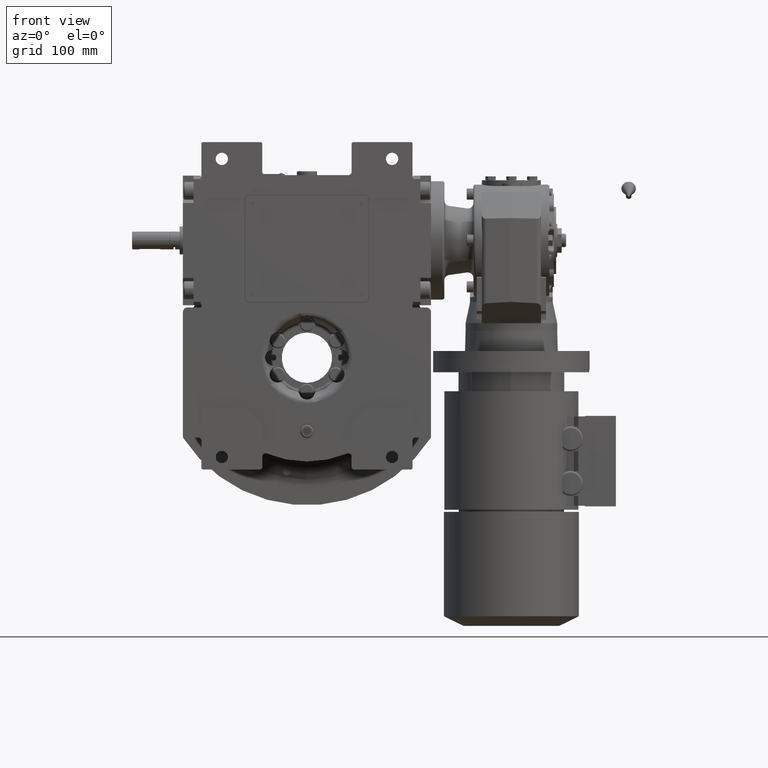
[diagram: clean part render]
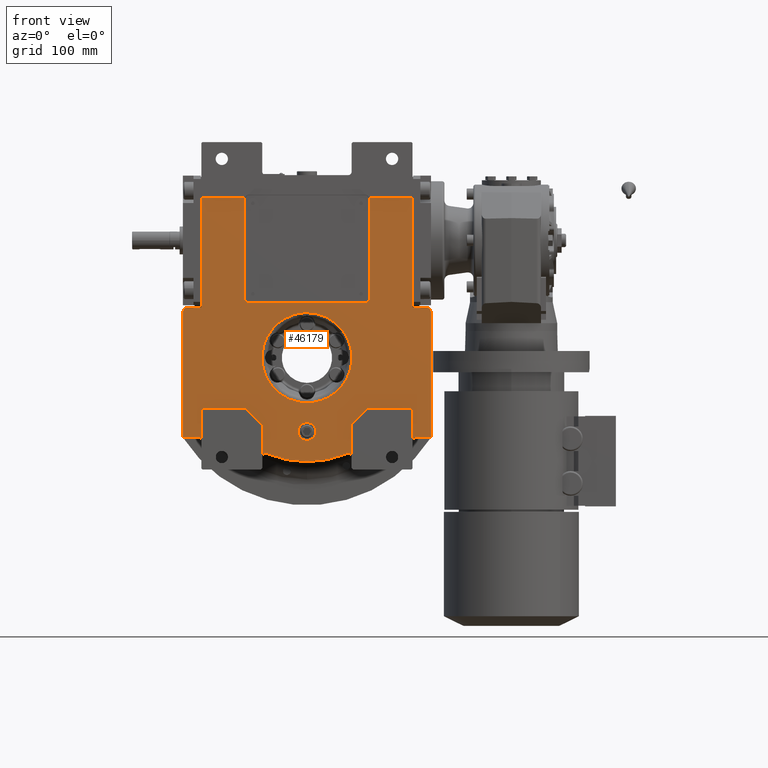
[diagram: same view with one face highlighted and labeled with its STEP entity id]
A machine part, front view. The second image highlights one B-rep face of the part: STEP entity #46179.
In plain terms, the highlighted planar face has unit normal (0, 1, 0).
Its self-contained STEP definition (entity closure, byte-faithful):
#464 = EDGE_CURVE ( 'NONE', #56667, #6692, #89729, .T. ) ;
#507 = CARTESIAN_POINT ( 'NONE',  ( 1.264666971694413862E-10, -53.50000000000000000, -40.30959420574829721 ) ) ;
#1080 = VERTEX_POINT ( 'NONE', #22429 ) ;
#1686 = ORIENTED_EDGE ( 'NONE', *, *, #12501, .T. ) ;
#1774 = CARTESIAN_POINT ( 'NONE',  ( 94.50000000000000000, -53.50000000000000000, -45.00000000000000000 ) ) ;
#2152 = DIRECTION ( 'NONE',  ( 0.000000000000000000, 1.000000000000000000, 0.000000000000000000 ) ) ;
#2241 = ORIENTED_EDGE ( 'NONE', *, *, #4283, .T. ) ;
#2763 = CARTESIAN_POINT ( 'NONE',  ( -107.0000000000000000, -53.50000000000000000, 41.00000000000000000 ) ) ;
#3138 = ORIENTED_EDGE ( 'NONE', *, *, #18342, .T. ) ;
#3786 = VECTOR ( 'NONE', #45458, 1000.000000000000000 ) ;
#4094 = EDGE_CURVE ( 'NONE', #17709, #36132, #56179, .T. ) ;
#4283 = EDGE_CURVE ( 'NONE', #48191, #56667, #73804, .T. ) ;
#4384 = VECTOR ( 'NONE', #84072, 1000.000000000000000 ) ;
#4463 = CIRCLE ( 'NONE', #62416, 92.99999999999995737 ) ;
#4571 = ORIENTED_EDGE ( 'NONE', *, *, #82298, .F. ) ;
#5327 = DIRECTION ( 'NONE',  ( 0.000000000000000000, -1.000000000000000000, 0.000000000000000000 ) ) ;
#5515 = VERTEX_POINT ( 'NONE', #1774 ) ;
#5816 = CARTESIAN_POINT ( 'NONE',  ( -111.0000000000000000, -53.50000000000000000, 41.00000000000000000 ) ) ;
#5862 = CARTESIAN_POINT ( 'NONE',  ( 51.99999999999940314, -53.50000000000000000, 142.0000000000000000 ) ) ;
#6116 = DIRECTION ( 'NONE',  ( 0.000000000000000000, -1.000000000000000000, 0.000000000000000000 ) ) ;
#6168 = EDGE_CURVE ( 'NONE', #5515, #84944, #99600, .T. ) ;
#6232 = DIRECTION ( 'NONE',  ( -0.000000000000000000, 1.000000000000000000, 0.000000000000000000 ) ) ;
#6692 = VERTEX_POINT ( 'NONE', #31850 ) ;
#6796 = CARTESIAN_POINT ( 'NONE',  ( 1.264666971694413862E-10, -53.50000000000000000, -40.30959420574829721 ) ) ;
#7255 = VECTOR ( 'NONE', #27142, 1000.000000000000000 ) ;
#7738 = ORIENTED_EDGE ( 'NONE', *, *, #32751, .F. ) ;
#8518 = DIRECTION ( 'NONE',  ( 1.000000000000000000, 0.000000000000000000, 0.000000000000000000 ) ) ;
#8534 = VERTEX_POINT ( 'NONE', #84133 ) ;
#8709 = ORIENTED_EDGE ( 'NONE', *, *, #47155, .F. ) ;
#9103 = EDGE_LOOP ( 'NONE', ( #80040, #43765, #40838, #64597, #23019, #65060, #71060, #45756, #1686, #83578, #3138, #59131, #59509, #7738, #4571, #25181, #87845, #47473, #16986, #8709, #16592, #81772, #17246, #2241, #20275, #91574, #34275, #102456, #78625, #41333, #27312, #46899 ) ) ;
#10734 = LINE ( 'NONE', #71959, #30532 ) ;
#10913 = VERTEX_POINT ( 'NONE', #97856 ) ;
#11661 = CARTESIAN_POINT ( 'NONE',  ( 94.50000000000000000, -53.50000000000000000, -74.43528539874399996 ) ) ;
#11984 = CARTESIAN_POINT ( 'NONE',  ( 0.000000000000000000, -53.50000000000000000, 0.000000000000000000 ) ) ;
#12132 = CARTESIAN_POINT ( 'NONE',  ( 97.50000000000000000, -53.50000000000000000, -74.43528539874399996 ) ) ;
#12406 = DIRECTION ( 'NONE',  ( -0.7071067811865474617, 0.000000000000000000, 0.7071067811865474617 ) ) ;
#12501 = EDGE_CURVE ( 'NONE', #8534, #67399, #52004, .T. ) ;
#13079 = AXIS2_PLACEMENT_3D ( 'NONE', #5862, #37495, #46282 ) ;
#13520 = CARTESIAN_POINT ( 'NONE',  ( -8.000000000000000000, -53.50000000000000000, -66.00000000000000000 ) ) ;
#14089 = LINE ( 'NONE', #77412, #21429 ) ;
#14228 = EDGE_CURVE ( 'NONE', #30820, #56730, #17584, .T. ) ;
#14391 = DIRECTION ( 'NONE',  ( -0.9682458365518610277, 0.000000000000000000, 0.2499999999999737432 ) ) ;
#15644 = DIRECTION ( 'NONE',  ( -1.000000000000000000, 0.000000000000000000, 0.000000000000000000 ) ) ;
#15866 = CARTESIAN_POINT ( 'NONE',  ( 94.50000000000000000, -53.50000000000000000, 45.00000000000000000 ) ) ;
#16068 = CARTESIAN_POINT ( 'NONE',  ( 80.61913312099713380, -53.49999999999999289, 40.30952624498025472 ) ) ;
#16592 = ORIENTED_EDGE ( 'NONE', *, *, #6168, .F. ) ;
#16986 = ORIENTED_EDGE ( 'NONE', *, *, #90536, .F. ) ;
#17108 = DIRECTION ( 'NONE',  ( 0.000000000000000000, -1.000000000000000000, 0.000000000000000000 ) ) ;
#17246 = ORIENTED_EDGE ( 'NONE', *, *, #59849, .T. ) ;
#17584 = CIRCLE ( 'NONE', #102149, 3.999999999999996447 ) ;
#17709 = VERTEX_POINT ( 'NONE', #76448 ) ;
#18193 = CARTESIAN_POINT ( 'NONE',  ( -40.00000000000000000, -53.50000000000000000, -60.00000000000000000 ) ) ;
#18342 = EDGE_CURVE ( 'NONE', #25554, #89978, #53421, .T. ) ;
#19723 = VERTEX_POINT ( 'NONE', #89640 ) ;
#19734 = FACE_OUTER_BOUND ( 'NONE', #9103, .T. ) ;
#19735 = VECTOR ( 'NONE', #33800, 1000.000000000000000 ) ;
#20047 = CARTESIAN_POINT ( 'NONE',  ( 55.00000000000000000, -53.50000000000000000, -45.00000000000000000 ) ) ;
#20172 = LINE ( 'NONE', #83498, #51760 ) ;
#20275 = ORIENTED_EDGE ( 'NONE', *, *, #464, .T. ) ;
#20347 = VERTEX_POINT ( 'NONE', #11661 ) ;
#20991 = CARTESIAN_POINT ( 'NONE',  ( -80.61913312099703433, -53.49999999999999289, -40.30952624498007708 ) ) ;
#21429 = VECTOR ( 'NONE', #31169, 1000.000000000000000 ) ;
#21814 = CARTESIAN_POINT ( 'NONE',  ( -40.00000000000000000, -53.50000000000000000, -88.58329413608420566 ) ) ;
#21897 = CARTESIAN_POINT ( 'NONE',  ( -8.881784197001250351E-16, -53.50000000000000000, -66.00000000000000000 ) ) ;
#21916 = DIRECTION ( 'NONE',  ( 0.000000000000000000, 1.000000000000000000, 0.000000000000000000 ) ) ;
#22091 = LINE ( 'NONE', #101017, #27993 ) ;
#22429 = CARTESIAN_POINT ( 'NONE',  ( 107.0000000000000000, -53.50000000000000000, 45.00000000000000000 ) ) ;
#22625 = CARTESIAN_POINT ( 'NONE',  ( -52.00000000000000000, -53.50000000000000000, 49.00000000000000000 ) ) ;
#23019 = ORIENTED_EDGE ( 'NONE', *, *, #4094, .F. ) ;
#23852 = CARTESIAN_POINT ( 'NONE',  ( -1.264761546777279996E-10, -53.50000000000000000, 40.30959420574835406 ) ) ;
#24392 = CIRCLE ( 'NONE', #82432, 3.999999999999996447 ) ;
#24603 = CIRCLE ( 'NONE', #13079, 4.000000000000572875 ) ;
#24646 = ORIENTED_EDGE ( 'NONE', *, *, #53466, .T. ) ;
#25085 = LINE ( 'NONE', #56739, #94027 ) ;
#25181 = ORIENTED_EDGE ( 'NONE', *, *, #27192, .T. ) ;
#25343 = VERTEX_POINT ( 'NONE', #42305 ) ;
#25554 = VERTEX_POINT ( 'NONE', #101961 ) ;
#25806 = CIRCLE ( 'NONE', #100455, 8.000000000000000000 ) ;
#25988 = CARTESIAN_POINT ( 'NONE',  ( 40.00000000000000000, -53.50000000000000000, -60.00000000000000000 ) ) ;
#26635 = EDGE_CURVE ( 'NONE', #44273, #32490, #4463, .T. ) ;
#27018 = CARTESIAN_POINT ( 'NONE',  ( 37.00000000000000000, -53.50000000000000000, -88.58329413608420566 ) ) ;
#27142 = DIRECTION ( 'NONE',  ( 1.000000000000000000, 0.000000000000000000, 0.000000000000000000 ) ) ;
#27192 = EDGE_CURVE ( 'NONE', #99356, #44273, #42559, .T. ) ;
#27265 = LINE ( 'NONE', #49582, #95586 ) ;
#27312 = ORIENTED_EDGE ( 'NONE', *, *, #94726, .F. ) ;
#27383 = DIRECTION ( 'NONE',  ( 0.000000000000000000, -1.000000000000000000, 0.000000000000000000 ) ) ;
#27727 = VERTEX_POINT ( 'NONE', #13520 ) ;
#27934 = CARTESIAN_POINT ( 'NONE',  ( 94.50000000000000000, -53.50000000000000000, -45.00000000000000000 ) ) ;
#27993 = VECTOR ( 'NONE', #84915, 1000.000000000000000 ) ;
#28971 = DIRECTION ( 'NONE',  ( 0.000000000000000000, 1.000000000000000000, 0.000000000000000000 ) ) ;
#29043 = CARTESIAN_POINT ( 'NONE',  ( 56.00000000000000000, -53.50000000000000000, 142.0000000000000000 ) ) ;
#30293 = CARTESIAN_POINT ( 'NONE',  ( -1.264761546777279996E-10, -53.50000000000000000, 40.30959420574835406 ) ) ;
#30532 = VECTOR ( 'NONE', #81292, 1000.000000000000000 ) ;
#30820 = VERTEX_POINT ( 'NONE', #47277 ) ;
#30936 = DIRECTION ( 'NONE',  ( 0.000000000000000000, 0.000000000000000000, -1.000000000000000000 ) ) ;
#31169 = DIRECTION ( 'NONE',  ( 0.000000000000000000, 0.000000000000000000, -1.000000000000000000 ) ) ;
#31850 = CARTESIAN_POINT ( 'NONE',  ( 111.0000000000000000, -53.50000000000000000, 41.00000000000000000 ) ) ;
#32307 = CARTESIAN_POINT ( 'NONE',  ( -94.50000000000000000, -53.50000000000000000, 143.0000000000000000 ) ) ;
#32490 = VERTEX_POINT ( 'NONE', #33679 ) ;
#32751 = EDGE_CURVE ( 'NONE', #65100, #76062, #20172, .T. ) ;
#33679 = CARTESIAN_POINT ( 'NONE',  ( 35.84375000000000000, -53.50000000000000000, -85.81506619433150718 ) ) ;
#33742 = VERTEX_POINT ( 'NONE', #507 ) ;
#33800 = DIRECTION ( 'NONE',  ( 0.000000000000000000, 0.000000000000000000, -1.000000000000000000 ) ) ;
#33837 = CARTESIAN_POINT ( 'NONE',  ( 97.50000000000000000, -53.50000000000000000, -71.43528539874399996 ) ) ;
#34044 = VERTEX_POINT ( 'NONE', #60591 ) ;
#34275 = ORIENTED_EDGE ( 'NONE', *, *, #64251, .F. ) ;
#34356 = DIRECTION ( 'NONE',  ( 1.000000000000000000, 0.000000000000000000, 0.000000000000000000 ) ) ;
#34911 = LINE ( 'NONE', #98298, #7255 ) ;
#35059 = DIRECTION ( 'NONE',  ( -0.3854166666666672403, 0.000000000000000000, -0.9227426472508764022 ) ) ;
#35303 = FACE_BOUND ( 'NONE', #57450, .T. ) ;
#35935 = DIRECTION ( 'NONE',  ( 0.000000000000000000, 0.000000000000000000, -1.000000000000000000 ) ) ;
#36132 = VERTEX_POINT ( 'NONE', #53067 ) ;
#36668 = VECTOR ( 'NONE', #59596, 1000.000000000000000 ) ;
#37000 = DIRECTION ( 'NONE',  ( -1.000000000000000000, 0.000000000000000000, 4.625929269271481378E-15 ) ) ;
#37206 = EDGE_CURVE ( 'NONE', #67399, #25554, #34911, .T. ) ;
#37447 = EDGE_CURVE ( 'NONE', #36132, #79144, #96767, .T. ) ;
#37495 = DIRECTION ( 'NONE',  ( 0.000000000000000000, -1.000000000000000000, 0.000000000000000000 ) ) ;
#37601 = LINE ( 'NONE', #39117, #56303 ) ;
#38564 = EDGE_CURVE ( 'NONE', #76062, #63464, #10734, .T. ) ;
#39117 = CARTESIAN_POINT ( 'NONE',  ( 55.00000000000000000, -53.50000000000000000, -45.00000000000000000 ) ) ;
#39690 = EDGE_CURVE ( 'NONE', #34044, #27727, #25806, .T. ) ;
#40631 = DIRECTION ( 'NONE',  ( -3.469446951953617344E-15, 0.000000000000000000, 1.000000000000000000 ) ) ;
#40838 = ORIENTED_EDGE ( 'NONE', *, *, #82188, .F. ) ;
#41333 = ORIENTED_EDGE ( 'NONE', *, *, #99000, .F. ) ;
#41560 = LINE ( 'NONE', #25988, #44966 ) ;
#42305 = CARTESIAN_POINT ( 'NONE',  ( 94.50000000000000000, -53.50000000000000000, 45.00000000000000000 ) ) ;
#42470 = DIRECTION ( 'NONE',  ( 6.319570704518680589E-16, 0.000000000000000000, 1.000000000000000000 ) ) ;
#42559 = CIRCLE ( 'NONE', #49216, 3.000000000000002665 ) ;
#42671 = DIRECTION ( 'NONE',  ( 0.000000000000000000, -1.000000000000000000, 0.000000000000000000 ) ) ;
#42672 = CARTESIAN_POINT ( 'NONE',  ( 55.87298334620739837, -53.50000000000000000, 143.0000000000000000 ) ) ;
#42872 = VECTOR ( 'NONE', #42470, 1000.000000000000000 ) ;
#43664 = EDGE_CURVE ( 'NONE', #88882, #17709, #80823, .T. ) ;
#43765 = ORIENTED_EDGE ( 'NONE', *, *, #14228, .F. ) ;
#43952 = CARTESIAN_POINT ( 'NONE',  ( -52.00000000000000000, -53.50000000000000000, 49.00000000000000000 ) ) ;
#44090 = CARTESIAN_POINT ( 'NONE',  ( 56.00000000000000000, -53.50000000000000000, 53.00000000000000000 ) ) ;
#44273 = VERTEX_POINT ( 'NONE', #95811 ) ;
#44274 = EDGE_LOOP ( 'NONE', ( #54131, #90468 ) ) ;
#44507 = EDGE_CURVE ( 'NONE', #63464, #89978, #58201, .T. ) ;
#44579 = EDGE_CURVE ( 'NONE', #90725, #10913, #69515, .T. ) ;
#44695 = EDGE_CURVE ( 'NONE', #101236, #25343, #14089, .T. ) ;
#44966 = VECTOR ( 'NONE', #89846, 1000.000000000000000 ) ;
#44973 = VECTOR ( 'NONE', #87848, 1000.000000000000000 ) ;
#45346 = EDGE_CURVE ( 'NONE', #6692, #1080, #92809, .T. ) ;
#45458 = DIRECTION ( 'NONE',  ( 1.000000000000000000, 0.000000000000000000, 0.000000000000000000 ) ) ;
#45756 = ORIENTED_EDGE ( 'NONE', *, *, #74235, .T. ) ;
#46060 = CARTESIAN_POINT ( 'NONE',  ( 94.50000000000000000, -53.50000000000000000, 143.0000000000000000 ) ) ;
#46179 = ADVANCED_FACE ( 'NONE', ( #35303, #66972, #19734 ), #83067, .F. ) ;
#46282 = DIRECTION ( 'NONE',  ( 1.000000000000000000, 0.000000000000000000, 1.387778780781246883E-14 ) ) ;
#46816 = AXIS2_PLACEMENT_3D ( 'NONE', #100132, #28971, #101131 ) ;
#46899 = ORIENTED_EDGE ( 'NONE', *, *, #44579, .F. ) ;
#46926 = VERTEX_POINT ( 'NONE', #82289 ) ;
#47155 = EDGE_CURVE ( 'NONE', #84944, #46926, #37601, .T. ) ;
#47277 = CARTESIAN_POINT ( 'NONE',  ( -56.00000000000000000, -53.50000000000000000, 53.00000000000000000 ) ) ;
#47473 = ORIENTED_EDGE ( 'NONE', *, *, #53917, .T. ) ;
#47921 = CARTESIAN_POINT ( 'NONE',  ( -111.0000000000000000, -53.50000000000000000, -71.43528539874409944 ) ) ;
#48191 = VERTEX_POINT ( 'NONE', #48566 ) ;
#48566 = CARTESIAN_POINT ( 'NONE',  ( 97.50000000000000000, -53.50000000000000000, -71.43528539874399996 ) ) ;
#49216 = AXIS2_PLACEMENT_3D ( 'NONE', #69682, #21916, #37000 ) ;
#49582 = CARTESIAN_POINT ( 'NONE',  ( -40.00000000000000000, -53.50000000000000000, -88.58329413608420566 ) ) ;
#49820 = DIRECTION ( 'NONE',  ( -1.000000000000000000, 0.000000000000000000, 1.734723475976808672E-15 ) ) ;
#49904 =( BOUNDED_CURVE ( )  B_SPLINE_CURVE ( 3, ( #23852, #16068, #77863, #6796 ),
 .UNSPECIFIED., .F., .F. ) 
 B_SPLINE_CURVE_WITH_KNOTS ( ( 4, 4 ),
 ( 4.574175343352308687, 7.715766673011676957 ),
 .UNSPECIFIED. ) 
 CURVE ( )  GEOMETRIC_REPRESENTATION_ITEM ( )  RATIONAL_B_SPLINE_CURVE ( ( 1.000000000000000000, 0.3333337746434750226, 0.3333337746434750226, 1.000000000000000000 ) ) 
 REPRESENTATION_ITEM ( '' )  );
#50258 = CARTESIAN_POINT ( 'NONE',  ( 111.0000000000000000, -53.50000000000000000, -71.43528539874399996 ) ) ;
#50787 = CARTESIAN_POINT ( 'NONE',  ( 52.00000000000000000, -53.50000000000000000, 49.00000000000000000 ) ) ;
#51510 = AXIS2_PLACEMENT_3D ( 'NONE', #11984, #6232, #55956 ) ;
#51660 = DIRECTION ( 'NONE',  ( 0.000000000000000000, -1.000000000000000000, 0.000000000000000000 ) ) ;
#51760 = VECTOR ( 'NONE', #12406, 1000.000000000000114 ) ;
#51985 = AXIS2_PLACEMENT_3D ( 'NONE', #77184, #6116, #14391 ) ;
#52004 = LINE ( 'NONE', #5816, #97102 ) ;
#52546 = VECTOR ( 'NONE', #87986, 1000.000000000000000 ) ;
#53067 = CARTESIAN_POINT ( 'NONE',  ( -55.87298334620739837, -53.50000000000000000, 143.0000000000000000 ) ) ;
#53421 = CIRCLE ( 'NONE', #46816, 3.000000000000002665 ) ;
#53466 = EDGE_CURVE ( 'NONE', #33742, #73741, #74458, .T. ) ;
#53917 = EDGE_CURVE ( 'NONE', #32490, #63203, #87024, .T. ) ;
#54131 = ORIENTED_EDGE ( 'NONE', *, *, #39690, .F. ) ;
#55523 = AXIS2_PLACEMENT_3D ( 'NONE', #27018, #2152, #90871 ) ;
#55956 = DIRECTION ( 'NONE',  ( 1.000000000000000000, 0.000000000000000000, 0.000000000000000000 ) ) ;
#56179 = LINE ( 'NONE', #32307, #44973 ) ;
#56180 = VERTEX_POINT ( 'NONE', #42672 ) ;
#56303 = VECTOR ( 'NONE', #77041, 1000.000000000000114 ) ;
#56667 = VERTEX_POINT ( 'NONE', #82402 ) ;
#56730 = VERTEX_POINT ( 'NONE', #43952 ) ;
#56739 = CARTESIAN_POINT ( 'NONE',  ( 55.87298334620739837, -53.50000000000000000, 143.0000000000000000 ) ) ;
#57450 = EDGE_LOOP ( 'NONE', ( #24646, #77628 ) ) ;
#58142 = CARTESIAN_POINT ( 'NONE',  ( 94.50000000000000000, -53.50000000000000000, -74.43528539874399996 ) ) ;
#58201 = LINE ( 'NONE', #89356, #19735 ) ;
#59131 = ORIENTED_EDGE ( 'NONE', *, *, #44507, .F. ) ;
#59509 = ORIENTED_EDGE ( 'NONE', *, *, #38564, .F. ) ;
#59596 = DIRECTION ( 'NONE',  ( -1.000000000000000000, 0.000000000000000000, 0.000000000000000000 ) ) ;
#59703 = AXIS2_PLACEMENT_3D ( 'NONE', #12132, #99857, #74909 ) ;
#59849 = EDGE_CURVE ( 'NONE', #20347, #48191, #87830, .T. ) ;
#60591 = CARTESIAN_POINT ( 'NONE',  ( 8.000000000000000000, -53.50000000000000000, -66.00000000000000000 ) ) ;
#62416 = AXIS2_PLACEMENT_3D ( 'NONE', #98962, #51660, #35059 ) ;
#62841 = AXIS2_PLACEMENT_3D ( 'NONE', #76388, #5327, #35935 ) ;
#63203 = VERTEX_POINT ( 'NONE', #80186 ) ;
#63464 = VERTEX_POINT ( 'NONE', #83778 ) ;
#64251 = EDGE_CURVE ( 'NONE', #25343, #1080, #86963, .T. ) ;
#64597 = ORIENTED_EDGE ( 'NONE', *, *, #37447, .F. ) ;
#65060 = ORIENTED_EDGE ( 'NONE', *, *, #43664, .F. ) ;
#65100 = VERTEX_POINT ( 'NONE', #18193 ) ;
#65339 = VERTEX_POINT ( 'NONE', #29043 ) ;
#65402 = DIRECTION ( 'NONE',  ( 0.000000000000000000, -1.000000000000000000, 0.000000000000000000 ) ) ;
#65939 = LINE ( 'NONE', #58142, #4384 ) ;
#66266 = AXIS2_PLACEMENT_3D ( 'NONE', #95957, #27383, #91756 ) ;
#66972 = FACE_BOUND ( 'NONE', #44274, .T. ) ;
#67399 = VERTEX_POINT ( 'NONE', #47921 ) ;
#69367 = VECTOR ( 'NONE', #88618, 1000.000000000000000 ) ;
#69515 = CIRCLE ( 'NONE', #62841, 3.999999999999996447 ) ;
#69548 = EDGE_CURVE ( 'NONE', #73741, #33742, #49904, .T. ) ;
#69682 = CARTESIAN_POINT ( 'NONE',  ( -37.00000000000000000, -53.50000000000000000, -88.58329413608420566 ) ) ;
#70849 = AXIS2_PLACEMENT_3D ( 'NONE', #21897, #100834, #15644 ) ;
#71060 = ORIENTED_EDGE ( 'NONE', *, *, #86230, .F. ) ;
#71088 = DIRECTION ( 'NONE',  ( 1.000000000000000000, 0.000000000000000000, 0.000000000000000000 ) ) ;
#71959 = CARTESIAN_POINT ( 'NONE',  ( -55.00000000000000000, -53.50000000000000000, -45.00000000000000000 ) ) ;
#73187 = CARTESIAN_POINT ( 'NONE',  ( -52.00000000000000000, -53.50000000000000000, 53.00000000000000000 ) ) ;
#73445 = CARTESIAN_POINT ( 'NONE',  ( -1.264761546777279996E-10, -53.50000000000000000, 40.30959420574835406 ) ) ;
#73646 = EDGE_CURVE ( 'NONE', #56730, #90725, #102568, .T. ) ;
#73741 = VERTEX_POINT ( 'NONE', #73445 ) ;
#73804 = LINE ( 'NONE', #33837, #89773 ) ;
#74235 = EDGE_CURVE ( 'NONE', #19723, #8534, #24392, .T. ) ;
#74458 =( BOUNDED_CURVE ( )  B_SPLINE_CURVE ( 3, ( #92125, #20991, #76525, #30293 ),
 .UNSPECIFIED., .F., .T. ) 
 B_SPLINE_CURVE_WITH_KNOTS ( ( 4, 4 ),
 ( 1.432582689913126872, 4.574174019572492256 ),
 .UNSPECIFIED. ) 
 CURVE ( )  GEOMETRIC_REPRESENTATION_ITEM ( )  RATIONAL_B_SPLINE_CURVE ( ( 1.000000000000000000, 0.3333337746434759108, 0.3333337746434759108, 1.000000000000000000 ) ) 
 REPRESENTATION_ITEM ( '' )  );
#74909 = DIRECTION ( 'NONE',  ( -1.000000000000000000, 0.000000000000000000, 0.000000000000000000 ) ) ;
#76062 = VERTEX_POINT ( 'NONE', #99713 ) ;
#76388 = CARTESIAN_POINT ( 'NONE',  ( 52.00000000000000000, -53.50000000000000000, 53.00000000000000000 ) ) ;
#76448 = CARTESIAN_POINT ( 'NONE',  ( -94.50000000000000000, -53.50000000000000000, 143.0000000000000000 ) ) ;
#76525 = CARTESIAN_POINT ( 'NONE',  ( -80.61913312124997333, -53.49999999999999289, 40.30955543265923069 ) ) ;
#77041 = DIRECTION ( 'NONE',  ( -0.7071067811865474617, 0.000000000000000000, -0.7071067811865474617 ) ) ;
#77184 = CARTESIAN_POINT ( 'NONE',  ( -51.99999999999900524, -53.50000000000000000, 142.0000000000000000 ) ) ;
#77412 = CARTESIAN_POINT ( 'NONE',  ( 94.50000000000000000, -53.50000000000000000, 143.0000000000000000 ) ) ;
#77421 = CARTESIAN_POINT ( 'NONE',  ( -94.50000000000000000, -53.50000000000000000, 45.00000000000000000 ) ) ;
#77628 = ORIENTED_EDGE ( 'NONE', *, *, #69548, .T. ) ;
#77863 = CARTESIAN_POINT ( 'NONE',  ( 80.61913312125007280, -53.49999999999999289, -40.30955543265933727 ) ) ;
#78625 = ORIENTED_EDGE ( 'NONE', *, *, #82757, .F. ) ;
#79144 = VERTEX_POINT ( 'NONE', #91362 ) ;
#80040 = ORIENTED_EDGE ( 'NONE', *, *, #73646, .F. ) ;
#80186 = CARTESIAN_POINT ( 'NONE',  ( 40.00000000000000000, -53.50000000000000000, -88.58329413608420566 ) ) ;
#80823 = LINE ( 'NONE', #96458, #69367 ) ;
#81244 = DIRECTION ( 'NONE',  ( 0.000000000000000000, 0.000000000000000000, 1.000000000000000000 ) ) ;
#81247 = CARTESIAN_POINT ( 'NONE',  ( -94.50000000000000000, -53.50000000000000000, -74.43528539874409944 ) ) ;
#81292 = DIRECTION ( 'NONE',  ( -1.000000000000000000, 0.000000000000000000, 0.000000000000000000 ) ) ;
#81772 = ORIENTED_EDGE ( 'NONE', *, *, #94716, .F. ) ;
#82188 = EDGE_CURVE ( 'NONE', #79144, #30820, #84967, .T. ) ;
#82281 = VECTOR ( 'NONE', #30936, 1000.000000000000000 ) ;
#82289 = CARTESIAN_POINT ( 'NONE',  ( 40.00000000000000000, -53.50000000000000000, -60.00000000000000000 ) ) ;
#82298 = EDGE_CURVE ( 'NONE', #99356, #65100, #27265, .T. ) ;
#82402 = CARTESIAN_POINT ( 'NONE',  ( 111.0000000000000000, -53.50000000000000000, -71.43528539874399996 ) ) ;
#82432 = AXIS2_PLACEMENT_3D ( 'NONE', #2763, #42671, #40631 ) ;
#82532 = LINE ( 'NONE', #44090, #90524 ) ;
#82648 = DIRECTION ( 'NONE',  ( 0.000000000000000000, 0.000000000000000000, -1.000000000000000000 ) ) ;
#82757 = EDGE_CURVE ( 'NONE', #56180, #101236, #25085, .T. ) ;
#83067 = PLANE ( 'NONE',  #51510 ) ;
#83498 = CARTESIAN_POINT ( 'NONE',  ( -40.00000000000000000, -53.50000000000000000, -60.00000000000000000 ) ) ;
#83578 = ORIENTED_EDGE ( 'NONE', *, *, #37206, .T. ) ;
#83778 = CARTESIAN_POINT ( 'NONE',  ( -94.50000000000000000, -53.50000000000000000, -45.00000000000000000 ) ) ;
#84072 = DIRECTION ( 'NONE',  ( 0.000000000000000000, 0.000000000000000000, 1.000000000000000000 ) ) ;
#84133 = CARTESIAN_POINT ( 'NONE',  ( -111.0000000000000000, -53.50000000000000000, 41.00000000000000000 ) ) ;
#84915 = DIRECTION ( 'NONE',  ( 1.000000000000000000, 0.000000000000000000, 0.000000000000000000 ) ) ;
#84944 = VERTEX_POINT ( 'NONE', #20047 ) ;
#84967 = LINE ( 'NONE', #93280, #82281 ) ;
#86230 = EDGE_CURVE ( 'NONE', #19723, #88882, #22091, .T. ) ;
#86963 = LINE ( 'NONE', #15866, #3786 ) ;
#87024 = CIRCLE ( 'NONE', #55523, 3.000000000000003997 ) ;
#87830 = CIRCLE ( 'NONE', #59703, 3.000000000000002665 ) ;
#87845 = ORIENTED_EDGE ( 'NONE', *, *, #26635, .T. ) ;
#87848 = DIRECTION ( 'NONE',  ( 1.000000000000000000, 0.000000000000000000, 0.000000000000000000 ) ) ;
#87986 = DIRECTION ( 'NONE',  ( 1.000000000000000000, 0.000000000000000000, 0.000000000000000000 ) ) ;
#88618 = DIRECTION ( 'NONE',  ( 0.000000000000000000, 0.000000000000000000, 1.000000000000000000 ) ) ;
#88713 = CARTESIAN_POINT ( 'NONE',  ( 8.881784197001250351E-16, -53.50000000000000000, -66.00000000000000000 ) ) ;
#88882 = VERTEX_POINT ( 'NONE', #77421 ) ;
#89356 = CARTESIAN_POINT ( 'NONE',  ( -94.50000000000000000, -53.50000000000000000, -45.00000000000000000 ) ) ;
#89640 = CARTESIAN_POINT ( 'NONE',  ( -107.0000000000000000, -53.50000000000000000, 45.00000000000000000 ) ) ;
#89729 = LINE ( 'NONE', #50258, #42872 ) ;
#89773 = VECTOR ( 'NONE', #34356, 1000.000000000000000 ) ;
#89846 = DIRECTION ( 'NONE',  ( 0.000000000000000000, 0.000000000000000000, -1.000000000000000000 ) ) ;
#89978 = VERTEX_POINT ( 'NONE', #81247 ) ;
#90468 = ORIENTED_EDGE ( 'NONE', *, *, #95805, .F. ) ;
#90524 = VECTOR ( 'NONE', #98676, 1000.000000000000000 ) ;
#90536 = EDGE_CURVE ( 'NONE', #46926, #63203, #41560, .T. ) ;
#90725 = VERTEX_POINT ( 'NONE', #50787 ) ;
#90871 = DIRECTION ( 'NONE',  ( -0.3854166666666676289, 0.000000000000000000, 0.9227426472508761801 ) ) ;
#91362 = CARTESIAN_POINT ( 'NONE',  ( -56.00000000000000000, -53.50000000000000000, 142.0000000000000000 ) ) ;
#91574 = ORIENTED_EDGE ( 'NONE', *, *, #45346, .T. ) ;
#91756 = DIRECTION ( 'NONE',  ( 1.000000000000000000, 0.000000000000000000, 5.204170427930416550E-15 ) ) ;
#92125 = CARTESIAN_POINT ( 'NONE',  ( 1.264666971694413862E-10, -53.50000000000000000, -40.30959420574829721 ) ) ;
#92809 = CIRCLE ( 'NONE', #66266, 4.000000000000003553 ) ;
#93280 = CARTESIAN_POINT ( 'NONE',  ( -56.00000000000000000, -53.50000000000000000, 142.0000000000000000 ) ) ;
#94027 = VECTOR ( 'NONE', #8518, 1000.000000000000000 ) ;
#94716 = EDGE_CURVE ( 'NONE', #20347, #5515, #65939, .T. ) ;
#94726 = EDGE_CURVE ( 'NONE', #10913, #65339, #82532, .T. ) ;
#95586 = VECTOR ( 'NONE', #81244, 1000.000000000000000 ) ;
#95647 = CIRCLE ( 'NONE', #70849, 8.000000000000000000 ) ;
#95805 = EDGE_CURVE ( 'NONE', #27727, #34044, #95647, .T. ) ;
#95811 = CARTESIAN_POINT ( 'NONE',  ( -35.84375000000000000, -53.50000000000000000, -85.81506619433150718 ) ) ;
#95957 = CARTESIAN_POINT ( 'NONE',  ( 107.0000000000000000, -53.50000000000000000, 41.00000000000000000 ) ) ;
#96458 = CARTESIAN_POINT ( 'NONE',  ( -94.50000000000000000, -53.50000000000000000, 45.00000000000000000 ) ) ;
#96767 = CIRCLE ( 'NONE', #51985, 4.000000000000978773 ) ;
#97102 = VECTOR ( 'NONE', #82648, 1000.000000000000000 ) ;
#97856 = CARTESIAN_POINT ( 'NONE',  ( 56.00000000000000000, -53.50000000000000000, 53.00000000000000000 ) ) ;
#98298 = CARTESIAN_POINT ( 'NONE',  ( -111.0000000000000000, -53.50000000000000000, -71.43528539874409944 ) ) ;
#98676 = DIRECTION ( 'NONE',  ( 0.000000000000000000, 0.000000000000000000, 1.000000000000000000 ) ) ;
#98962 = CARTESIAN_POINT ( 'NONE',  ( 1.421085471520200056E-14, -53.50000000000000000, -4.263256414560599853E-14 ) ) ;
#99000 = EDGE_CURVE ( 'NONE', #65339, #56180, #24603, .T. ) ;
#99356 = VERTEX_POINT ( 'NONE', #21814 ) ;
#99600 = LINE ( 'NONE', #27934, #36668 ) ;
#99713 = CARTESIAN_POINT ( 'NONE',  ( -55.00000000000000000, -53.50000000000000000, -45.00000000000000000 ) ) ;
#99857 = DIRECTION ( 'NONE',  ( 0.000000000000000000, 1.000000000000000000, 0.000000000000000000 ) ) ;
#100132 = CARTESIAN_POINT ( 'NONE',  ( -97.50000000000000000, -53.50000000000000000, -74.43528539874409944 ) ) ;
#100455 = AXIS2_PLACEMENT_3D ( 'NONE', #88713, #17108, #71088 ) ;
#100834 = DIRECTION ( 'NONE',  ( 0.000000000000000000, -1.000000000000000000, 0.000000000000000000 ) ) ;
#101017 = CARTESIAN_POINT ( 'NONE',  ( -107.0000000000000000, -53.50000000000000000, 45.00000000000000000 ) ) ;
#101131 = DIRECTION ( 'NONE',  ( 0.000000000000000000, 0.000000000000000000, 1.000000000000000000 ) ) ;
#101236 = VERTEX_POINT ( 'NONE', #46060 ) ;
#101961 = CARTESIAN_POINT ( 'NONE',  ( -97.50000000000000000, -53.50000000000000000, -71.43528539874409944 ) ) ;
#102149 = AXIS2_PLACEMENT_3D ( 'NONE', #73187, #65402, #49820 ) ;
#102456 = ORIENTED_EDGE ( 'NONE', *, *, #44695, .F. ) ;
#102568 = LINE ( 'NONE', #22625, #52546 ) ;